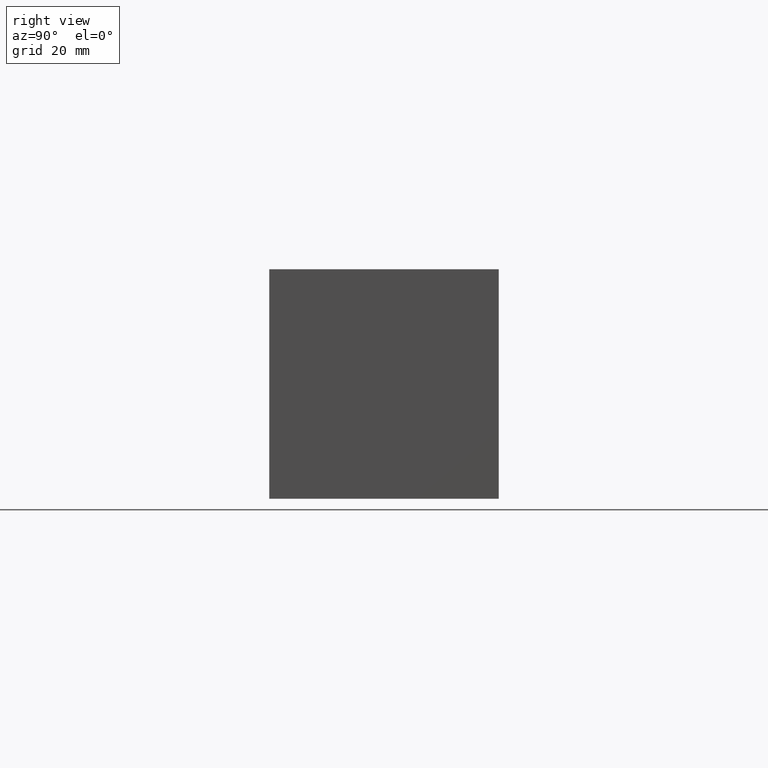
[diagram: clean part render]
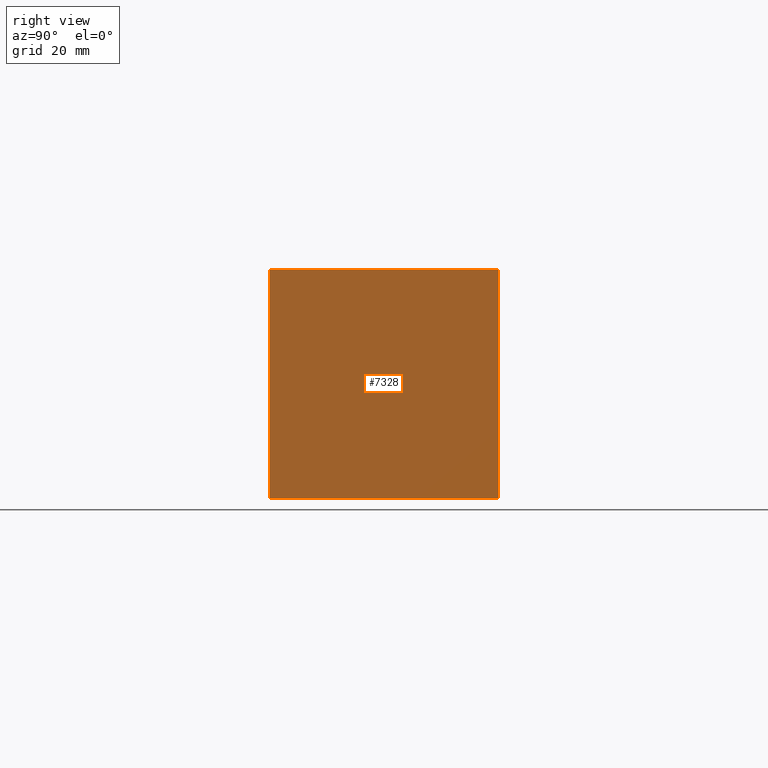
[diagram: same view with one face highlighted and labeled with its STEP entity id]
A machine part, right view. The second image highlights one B-rep face of the part: STEP entity #7328.
In plain terms, the highlighted planar face has unit normal (1, 0, 0).
Its self-contained STEP definition (entity closure, byte-faithful):
#918=FACE_OUTER_BOUND('',#1333,.T.);
#1333=EDGE_LOOP('',(#6413,#6414,#6415,#6416));
#1598=LINE('',#11446,#2285);
#2026=LINE('',#12654,#2713);
#2027=LINE('',#12657,#2714);
#2028=LINE('',#12658,#2715);
#2285=VECTOR('',#8079,10.);
#2713=VECTOR('',#9091,10.);
#2714=VECTOR('',#9094,10.);
#2715=VECTOR('',#9095,10.);
#3030=VERTEX_POINT('',#11443);
#3031=VERTEX_POINT('',#11445);
#3391=VERTEX_POINT('',#12652);
#3392=VERTEX_POINT('',#12656);
#3862=EDGE_CURVE('',#3030,#3031,#1598,.T.);
#4404=EDGE_CURVE('',#3391,#3031,#2026,.T.);
#4405=EDGE_CURVE('',#3392,#3391,#2027,.T.);
#4406=EDGE_CURVE('',#3392,#3030,#2028,.T.);
#6413=ORIENTED_EDGE('',*,*,#4405,.T.);
#6414=ORIENTED_EDGE('',*,*,#4404,.T.);
#6415=ORIENTED_EDGE('',*,*,#3862,.F.);
#6416=ORIENTED_EDGE('',*,*,#4406,.F.);
#6648=PLANE('',#7698);
#7328=ADVANCED_FACE('',(#918),#6648,.T.);
#7698=AXIS2_PLACEMENT_3D('',#12655,#9092,#9093);
#8079=DIRECTION('',(0.,1.,0.));
#9091=DIRECTION('',(0.,0.,1.));
#9092=DIRECTION('center_axis',(1.,0.,0.));
#9093=DIRECTION('ref_axis',(0.,1.,0.));
#9094=DIRECTION('',(0.,1.,0.));
#9095=DIRECTION('',(0.,0.,1.));
#11443=CARTESIAN_POINT('',(127.,0.,44.45));
#11445=CARTESIAN_POINT('',(127.,44.45,44.45));
#11446=CARTESIAN_POINT('',(127.,0.,44.45));
#12652=CARTESIAN_POINT('',(127.,44.45,0.));
#12654=CARTESIAN_POINT('',(127.,44.45,0.));
#12655=CARTESIAN_POINT('Origin',(127.,0.,0.));
#12656=CARTESIAN_POINT('',(127.,0.,0.));
#12657=CARTESIAN_POINT('',(127.,0.,0.));
#12658=CARTESIAN_POINT('',(127.,0.,0.));